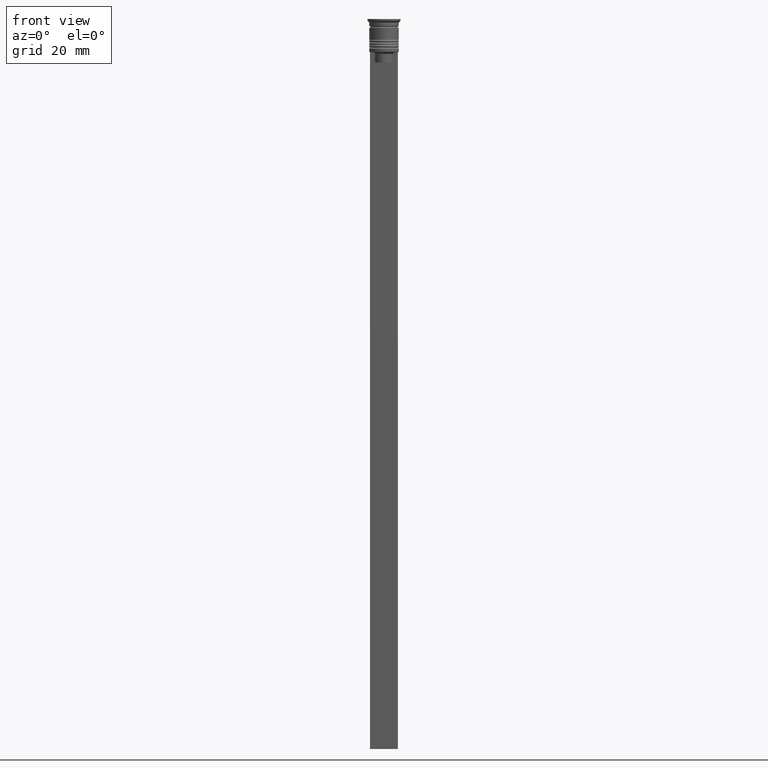
[diagram: clean part render]
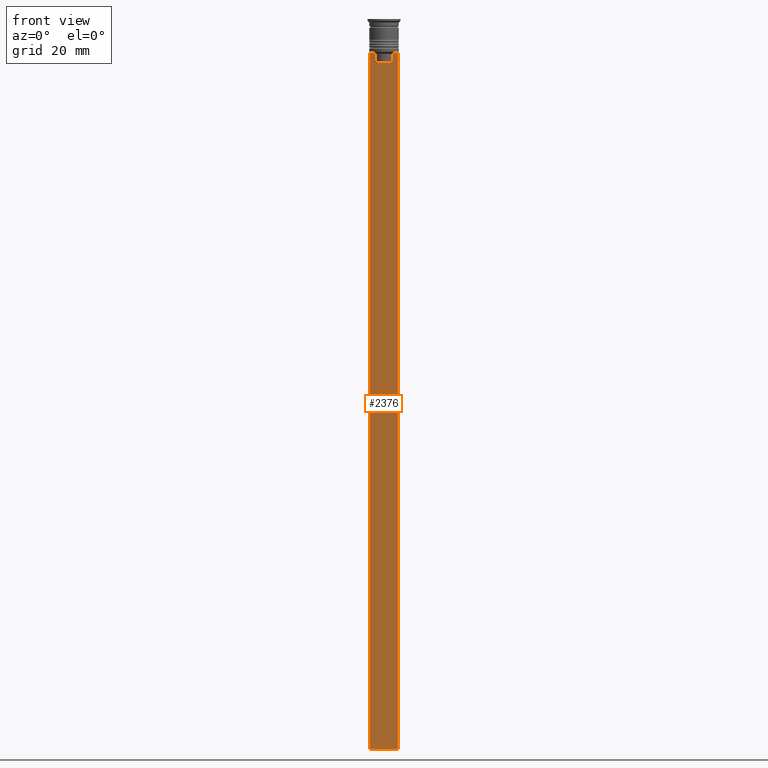
[diagram: same view with one face highlighted and labeled with its STEP entity id]
A machine part, front view. The second image highlights one B-rep face of the part: STEP entity #2376.
In plain terms, the highlighted planar face has unit normal (0, -1, -0).
Its self-contained STEP definition (entity closure, byte-faithful):
#4 = EDGE_LOOP ( 'NONE', ( #481, #603, #2145, #1115, #1131, #1826, #1600, #1253, #1915, #2197 ) ) ;
#39 = VERTEX_POINT ( 'NONE', #2355 ) ;
#90 = CARTESIAN_POINT ( 'NONE',  ( 3.110064308016796453, -0.5000000000000004441, -9.500000000000000000 ) ) ;
#95 = VECTOR ( 'NONE', #120, 1000.000000000000000 ) ;
#107 = CARTESIAN_POINT ( 'NONE',  ( 2.602402735934616906, -0.5000000000000004441, 0.000000000000000000 ) ) ;
#120 = DIRECTION ( 'NONE',  ( 0.000000000000000000, 0.000000000000000000, -1.000000000000000000 ) ) ;
#122 = CARTESIAN_POINT ( 'NONE',  ( 3.110064308016796453, -0.5000000000000004441, -9.500000000000000000 ) ) ;
#141 = VECTOR ( 'NONE', #1398, 1000.000000000000000 ) ;
#167 = CARTESIAN_POINT ( 'NONE',  ( 2.602402735934616906, -0.5000000000000004441, -10.00000000000000178 ) ) ;
#250 = DIRECTION ( 'NONE',  ( 1.000000000000000000, 0.000000000000000000, 0.000000000000000000 ) ) ;
#284 = B_SPLINE_CURVE_WITH_KNOTS ( 'NONE', 3,
 ( #1547, #467, #1572, #90 ),
 .UNSPECIFIED., .F., .F.,
 ( 4, 4 ),
 ( 0.01295151922336847811, 0.01367164596165162602 ),
 .UNSPECIFIED. ) ;
#348 = CARTESIAN_POINT ( 'NONE',  ( -2.602402735934616906, -0.5000000000000004441, -10.00000000000000178 ) ) ;
#438 = FACE_OUTER_BOUND ( 'NONE', #4, .T. ) ;
#444 = CARTESIAN_POINT ( 'NONE',  ( 4.000000000000005329, -0.5000000000000004441, -9.500000000000000000 ) ) ;
#464 = VERTEX_POINT ( 'NONE', #444 ) ;
#467 = CARTESIAN_POINT ( 'NONE',  ( 2.771864055700302476, -0.5000000000000004441, -9.833582414266679450 ) ) ;
#472 = PLANE ( 'NONE',  #1135 ) ;
#481 = ORIENTED_EDGE ( 'NONE', *, *, #1009, .F. ) ;
#489 = LINE ( 'NONE', #2140, #95 ) ;
#508 = EDGE_CURVE ( 'NONE', #2078, #1989, #896, .T. ) ;
#519 = VERTEX_POINT ( 'NONE', #167 ) ;
#603 = ORIENTED_EDGE ( 'NONE', *, *, #1813, .F. ) ;
#666 = CARTESIAN_POINT ( 'NONE',  ( -2.602402735934616906, -0.5000000000000004441, 0.000000000000000000 ) ) ;
#732 = CARTESIAN_POINT ( 'NONE',  ( 4.000000000000005329, -0.5000000000000004441, -209.5000000000000284 ) ) ;
#782 = CARTESIAN_POINT ( 'NONE',  ( 4.000000000000005329, -0.5000000000000004441, -1.437742251701450202 ) ) ;
#824 = VECTOR ( 'NONE', #2010, 1000.000000000000000 ) ;
#836 = LINE ( 'NONE', #1576, #1403 ) ;
#845 = CARTESIAN_POINT ( 'NONE',  ( -3.110064308016796453, -0.5000000000000004441, -9.500000000000000000 ) ) ;
#896 = LINE ( 'NONE', #666, #1150 ) ;
#943 = CARTESIAN_POINT ( 'NONE',  ( 4.000000000000005329, -0.5000000000000004441, -9.500000000000000000 ) ) ;
#975 = CARTESIAN_POINT ( 'NONE',  ( -3.110064308016796453, -0.5000000000000004441, -9.500000000000000000 ) ) ;
#1009 = EDGE_CURVE ( 'NONE', #1167, #2078, #1451, .T. ) ;
#1010 = VERTEX_POINT ( 'NONE', #1792 ) ;
#1018 = VECTOR ( 'NONE', #1680, 1000.000000000000000 ) ;
#1077 = CARTESIAN_POINT ( 'NONE',  ( -2.602402735934616906, -0.5000000000000004441, -10.00000000000000178 ) ) ;
#1113 = LINE ( 'NONE', #782, #1018 ) ;
#1115 = ORIENTED_EDGE ( 'NONE', *, *, #2085, .F. ) ;
#1131 = ORIENTED_EDGE ( 'NONE', *, *, #2217, .F. ) ;
#1135 = AXIS2_PLACEMENT_3D ( 'NONE', #2266, #1927, #1902 ) ;
#1150 = VECTOR ( 'NONE', #1636, 1000.000000000000000 ) ;
#1151 = CARTESIAN_POINT ( 'NONE',  ( -3.999999999999994671, -0.5000000000000004441, -209.5000000000000284 ) ) ;
#1167 = VERTEX_POINT ( 'NONE', #975 ) ;
#1233 = CARTESIAN_POINT ( 'NONE',  ( 4.000000000000005329, -0.5000000000000004441, -209.5000000000000284 ) ) ;
#1253 = ORIENTED_EDGE ( 'NONE', *, *, #1478, .F. ) ;
#1258 = CARTESIAN_POINT ( 'NONE',  ( -2.941047749529104749, -0.5000000000000004441, -9.666873766989334982 ) ) ;
#1395 = CARTESIAN_POINT ( 'NONE',  ( -2.602402735934616906, -0.5000000000000004441, -12.50000000000000000 ) ) ;
#1398 = DIRECTION ( 'NONE',  ( 1.000000000000000000, 0.000000000000000000, 0.000000000000000000 ) ) ;
#1399 = VERTEX_POINT ( 'NONE', #122 ) ;
#1403 = VECTOR ( 'NONE', #2315, 1000.000000000000000 ) ;
#1405 = VECTOR ( 'NONE', #250, 1000.000000000000000 ) ;
#1440 = EDGE_CURVE ( 'NONE', #39, #1869, #489, .T. ) ;
#1451 = B_SPLINE_CURVE_WITH_KNOTS ( 'NONE', 3,
 ( #845, #1258, #2175, #348 ),
 .UNSPECIFIED., .F., .F.,
 ( 4, 4 ),
 ( 0.005378271293598281544, 0.006090816219556000749 ),
 .UNSPECIFIED. ) ;
#1478 = EDGE_CURVE ( 'NONE', #1010, #519, #2119, .T. ) ;
#1482 = EDGE_CURVE ( 'NONE', #1399, #464, #836, .T. ) ;
#1500 = LINE ( 'NONE', #943, #1405 ) ;
#1509 = EDGE_CURVE ( 'NONE', #1989, #1010, #2280, .T. ) ;
#1547 = CARTESIAN_POINT ( 'NONE',  ( 2.602402735934616906, -0.5000000000000004441, -10.00000000000000178 ) ) ;
#1572 = CARTESIAN_POINT ( 'NONE',  ( 2.941045828809988549, -0.5000000000000004441, -9.666875663357577864 ) ) ;
#1576 = CARTESIAN_POINT ( 'NONE',  ( 4.000000000000005329, -0.5000000000000004441, -9.500000000000000000 ) ) ;
#1600 = ORIENTED_EDGE ( 'NONE', *, *, #1980, .F. ) ;
#1621 = LINE ( 'NONE', #1233, #824 ) ;
#1636 = DIRECTION ( 'NONE',  ( 0.000000000000000000, 0.000000000000000000, -1.000000000000000000 ) ) ;
#1680 = DIRECTION ( 'NONE',  ( 0.000000000000000000, 0.000000000000000000, -1.000000000000000000 ) ) ;
#1682 = VERTEX_POINT ( 'NONE', #732 ) ;
#1743 = VECTOR ( 'NONE', #2104, 1000.000000000000000 ) ;
#1792 = CARTESIAN_POINT ( 'NONE',  ( 2.602402735934616906, -0.5000000000000004441, -12.50000000000000000 ) ) ;
#1813 = EDGE_CURVE ( 'NONE', #39, #1167, #1500, .T. ) ;
#1826 = ORIENTED_EDGE ( 'NONE', *, *, #1482, .F. ) ;
#1869 = VERTEX_POINT ( 'NONE', #1151 ) ;
#1902 = DIRECTION ( 'NONE',  ( 0.000000000000000000, 0.000000000000000000, -1.000000000000000000 ) ) ;
#1915 = ORIENTED_EDGE ( 'NONE', *, *, #1509, .F. ) ;
#1927 = DIRECTION ( 'NONE',  ( 0.000000000000000000, -1.000000000000000000, -0.000000000000000000 ) ) ;
#1954 = CARTESIAN_POINT ( 'NONE',  ( 0.000000000000000000, -0.5000000000000004441, -12.50000000000000000 ) ) ;
#1980 = EDGE_CURVE ( 'NONE', #519, #1399, #284, .T. ) ;
#1989 = VERTEX_POINT ( 'NONE', #1395 ) ;
#2010 = DIRECTION ( 'NONE',  ( -1.000000000000000000, 0.000000000000000000, 0.000000000000000000 ) ) ;
#2078 = VERTEX_POINT ( 'NONE', #1077 ) ;
#2085 = EDGE_CURVE ( 'NONE', #1682, #1869, #1621, .T. ) ;
#2104 = DIRECTION ( 'NONE',  ( -0.000000000000000000, -0.000000000000000000, 1.000000000000000000 ) ) ;
#2119 = LINE ( 'NONE', #107, #1743 ) ;
#2140 = CARTESIAN_POINT ( 'NONE',  ( -3.999999999999994671, -0.5000000000000004441, -1.437742251701450202 ) ) ;
#2145 = ORIENTED_EDGE ( 'NONE', *, *, #1440, .T. ) ;
#2175 = CARTESIAN_POINT ( 'NONE',  ( -2.771866350855961336, -0.5000000000000004441, -9.833580160334840059 ) ) ;
#2197 = ORIENTED_EDGE ( 'NONE', *, *, #508, .F. ) ;
#2217 = EDGE_CURVE ( 'NONE', #464, #1682, #1113, .T. ) ;
#2266 = CARTESIAN_POINT ( 'NONE',  ( 4.000000000000005329, -0.5000000000000004441, -1.437742251701450202 ) ) ;
#2280 = LINE ( 'NONE', #1954, #141 ) ;
#2315 = DIRECTION ( 'NONE',  ( 1.000000000000000000, 0.000000000000000000, 0.000000000000000000 ) ) ;
#2355 = CARTESIAN_POINT ( 'NONE',  ( -3.999999999999994671, -0.5000000000000004441, -9.500000000000000000 ) ) ;
#2376 = ADVANCED_FACE ( 'NONE', ( #438 ), #472, .T. ) ;